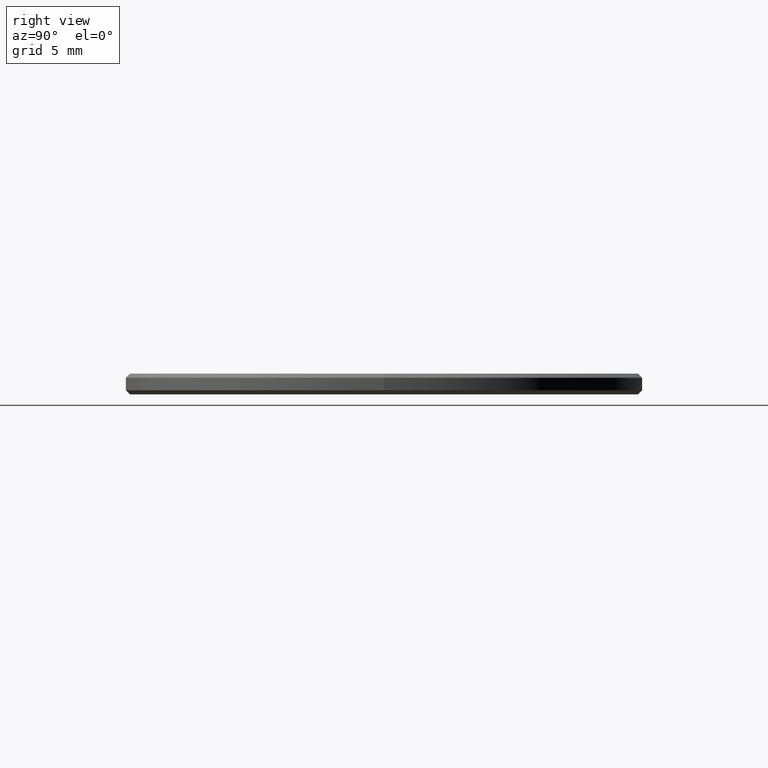
[diagram: clean part render]
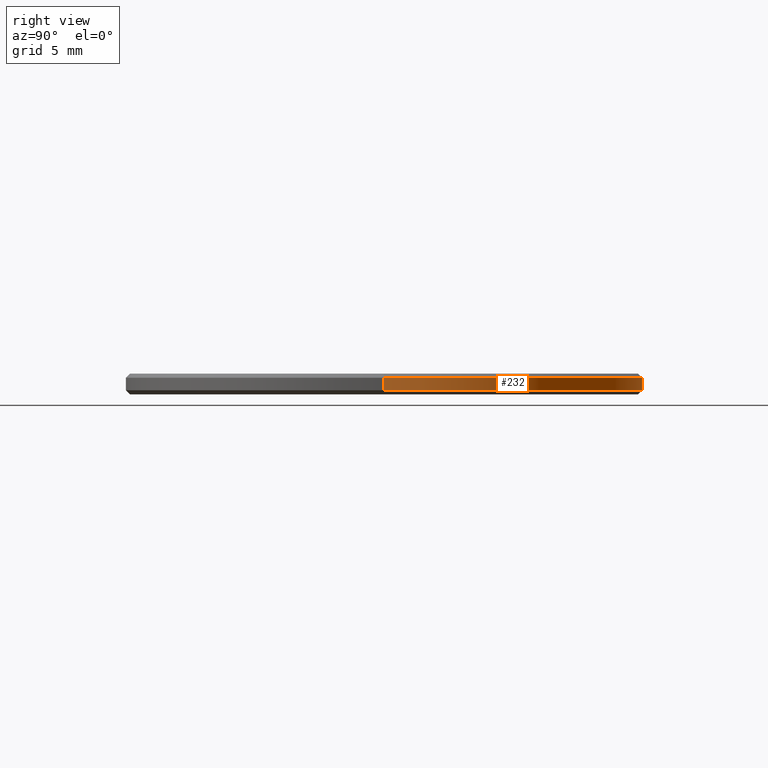
[diagram: same view with one face highlighted and labeled with its STEP entity id]
A machine part, right view. The second image highlights one B-rep face of the part: STEP entity #232.
In plain terms, the highlighted cylindrical surface (partial cylindrical patch) has radius 12.5 mm, axis along (-0, -0, -1).
Its self-contained STEP definition (entity closure, byte-faithful):
#4 = FACE_OUTER_BOUND ( 'NONE', #82, .T. ) ;
#7 = CARTESIAN_POINT ( 'NONE',  ( 0.000000000000000000, 0.000000000000000000, 0.8000000000000029310 ) ) ;
#12 = AXIS2_PLACEMENT_3D ( 'NONE', #106, #160, #94 ) ;
#16 = LINE ( 'NONE', #51, #30 ) ;
#29 = ORIENTED_EDGE ( 'NONE', *, *, #188, .T. ) ;
#30 = VECTOR ( 'NONE', #162, 1000.000000000000000 ) ;
#38 = CARTESIAN_POINT ( 'NONE',  ( 12.50000000000000000, 1.530808498934191521E-15, 0.8000000000000029310 ) ) ;
#39 = DIRECTION ( 'NONE',  ( -1.000000000000000000, 0.000000000000000000, 0.000000000000000000 ) ) ;
#45 = VERTEX_POINT ( 'NONE', #126 ) ;
#51 = CARTESIAN_POINT ( 'NONE',  ( -12.50000000000000000, 0.000000000000000000, 1.000000000000000000 ) ) ;
#52 = CARTESIAN_POINT ( 'NONE',  ( -12.50000000000000000, 0.000000000000000000, 0.1999999999999987899 ) ) ;
#54 = AXIS2_PLACEMENT_3D ( 'NONE', #96, #206, #39 ) ;
#63 = AXIS2_PLACEMENT_3D ( 'NONE', #7, #149, #208 ) ;
#67 = ORIENTED_EDGE ( 'NONE', *, *, #123, .F. ) ;
#76 = LINE ( 'NONE', #97, #115 ) ;
#82 = EDGE_LOOP ( 'NONE', ( #29, #170, #151, #67 ) ) ;
#84 = EDGE_CURVE ( 'NONE', #189, #116, #156, .T. ) ;
#94 = DIRECTION ( 'NONE',  ( 1.000000000000000000, 0.000000000000000000, 0.000000000000000000 ) ) ;
#96 = CARTESIAN_POINT ( 'NONE',  ( 0.000000000000000000, 0.000000000000000000, 1.000000000000000000 ) ) ;
#97 = CARTESIAN_POINT ( 'NONE',  ( 12.50000000000000000, 1.530808498934191521E-15, 1.000000000000000000 ) ) ;
#100 = CARTESIAN_POINT ( 'NONE',  ( 12.50000000000000000, 1.530808498934191521E-15, 0.1999999999999987899 ) ) ;
#106 = CARTESIAN_POINT ( 'NONE',  ( 0.000000000000000000, 0.000000000000000000, 0.1999999999999987899 ) ) ;
#115 = VECTOR ( 'NONE', #207, 1000.000000000000000 ) ;
#116 = VERTEX_POINT ( 'NONE', #52 ) ;
#123 = EDGE_CURVE ( 'NONE', #45, #116, #16, .T. ) ;
#126 = CARTESIAN_POINT ( 'NONE',  ( -12.50000000000000000, 0.000000000000000000, 0.8000000000000029310 ) ) ;
#147 = CYLINDRICAL_SURFACE ( 'NONE', #54, 12.50000000000000000 ) ;
#149 = DIRECTION ( 'NONE',  ( 0.000000000000000000, 0.000000000000000000, -1.000000000000000000 ) ) ;
#151 = ORIENTED_EDGE ( 'NONE', *, *, #84, .T. ) ;
#156 = CIRCLE ( 'NONE', #12, 12.50000000000000000 ) ;
#160 = DIRECTION ( 'NONE',  ( -0.000000000000000000, -0.000000000000000000, 1.000000000000000000 ) ) ;
#162 = DIRECTION ( 'NONE',  ( -0.000000000000000000, -0.000000000000000000, -1.000000000000000000 ) ) ;
#165 = CIRCLE ( 'NONE', #63, 12.50000000000000000 ) ;
#170 = ORIENTED_EDGE ( 'NONE', *, *, #211, .T. ) ;
#188 = EDGE_CURVE ( 'NONE', #45, #193, #165, .T. ) ;
#189 = VERTEX_POINT ( 'NONE', #100 ) ;
#193 = VERTEX_POINT ( 'NONE', #38 ) ;
#206 = DIRECTION ( 'NONE',  ( -0.000000000000000000, -0.000000000000000000, -1.000000000000000000 ) ) ;
#207 = DIRECTION ( 'NONE',  ( -0.000000000000000000, -0.000000000000000000, -1.000000000000000000 ) ) ;
#208 = DIRECTION ( 'NONE',  ( 1.000000000000000000, 0.000000000000000000, 0.000000000000000000 ) ) ;
#211 = EDGE_CURVE ( 'NONE', #193, #189, #76, .T. ) ;
#232 = ADVANCED_FACE ( 'NONE', ( #4 ), #147, .T. ) ;